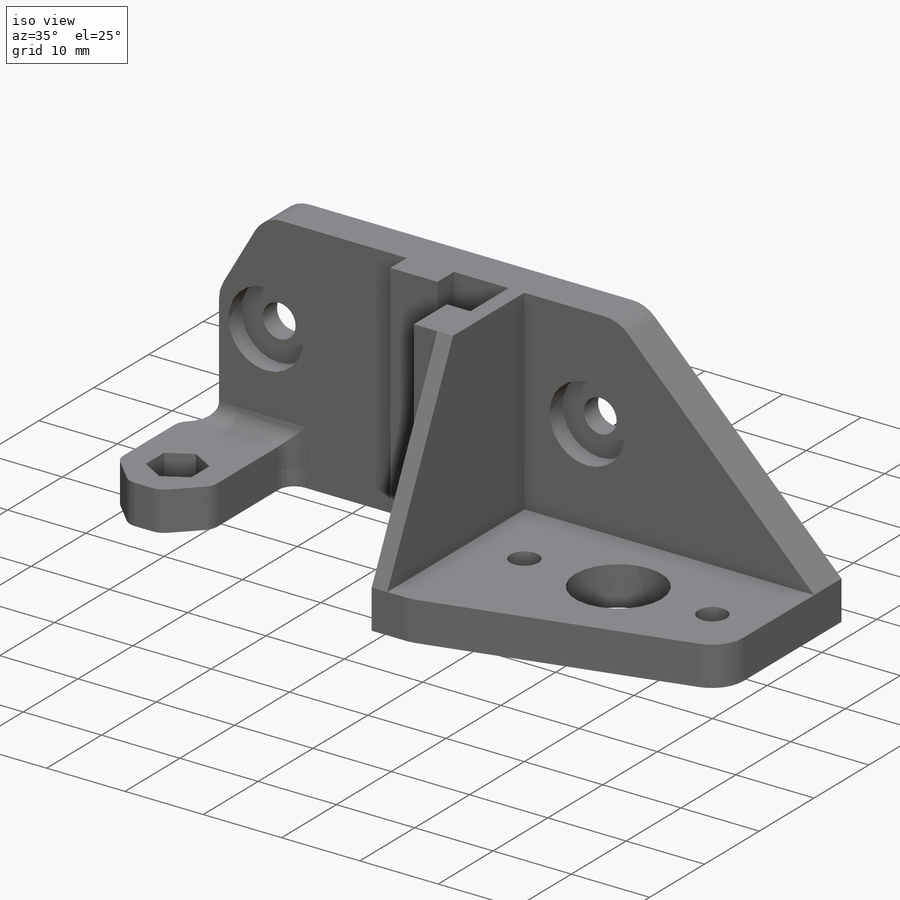
[diagram: iso view]
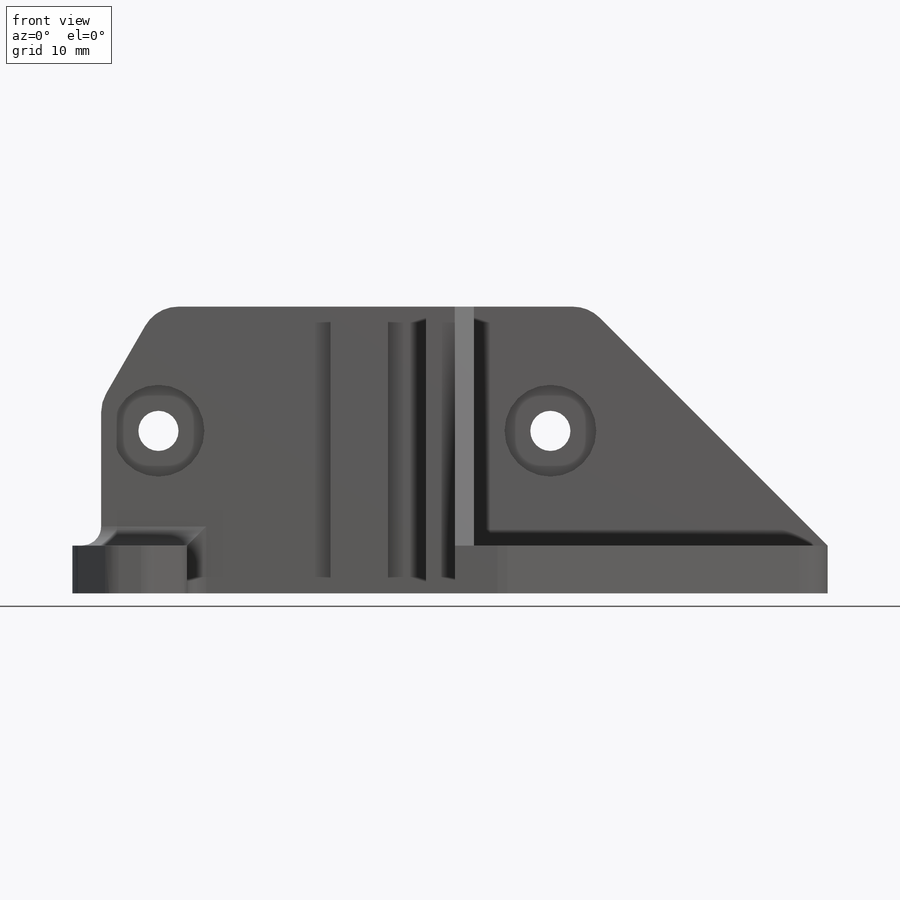
[diagram: front view]
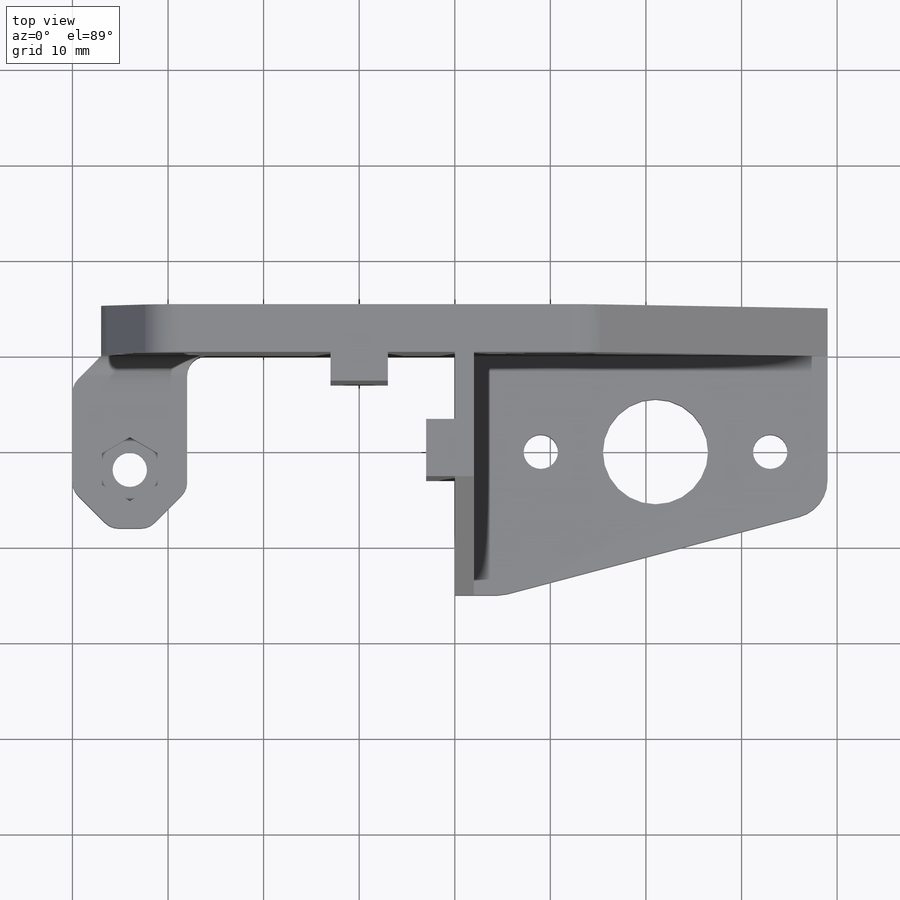
[diagram: top view]
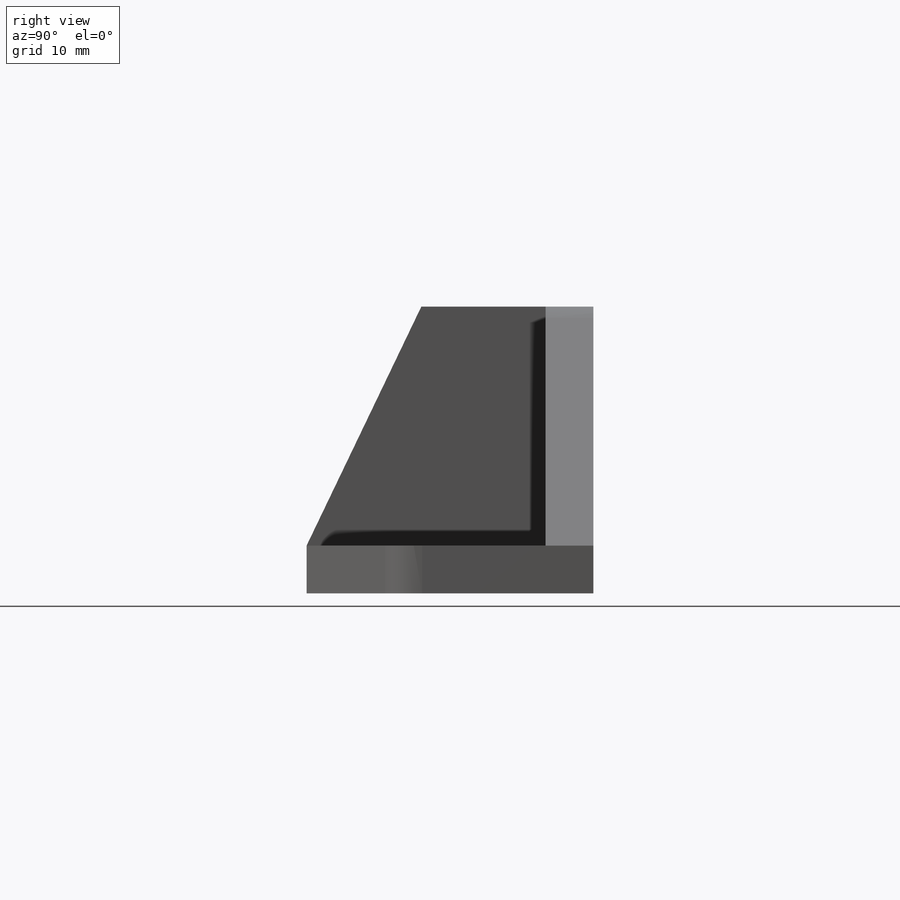
[diagram: right view]
SOLIDWORKS PART (.sldprt)
format: sldprt  version: not decoded by parser v0  size: 486,912 bytes
history: native  units: mm
features: sketch x18, cut_extrude x11, extrude x7, chamfer x4, fillet x3, move_body x2, material x1 + 1 further entry (+11 scaffold rows collapsed; 2 parser-record rows omitted)
feature tree (60):
  scaffold x11  (default folders/planes/origin — collapsed)
  material  "Material <not specified>"
  parser-record x2  (decoder bookkeeping rows leaked as tree rows — omitted from the tree; the rows remain in map.json)
  "X-End-Idler-V1_Mirrored Features1"
  sketch  "Sketch1"  dims[D1=30.0mm D2=30.0mm D3=15.0mm D4=15.0mm]
  extrude  "Boss-Extrude1"  Depth=30mm
  sketch  "Sketch2"  dims[D1=20.0mm D2=20.0mm D3=5.0mm D4=5.0mm]
  cut_extrude  "Cut-Extrude1"  [1 undecoded]
  sketch  "Sketch3"  dims[D1=5.0mm]
  extrude  "Boss-Extrude2"  Depth=40mm
  sketch  "Sketch4"  dims[D2=11.0mm D3=3.6mm D4=3.6mm D1=21.0mm D5=10.0mm D6=10.0mm D7=10.0mm D8=12.0mm D9=12.0mm]
  cut_extrude  "Cut-Extrude2"  [1 undecoded]
  sketch  "Sketch7"  dims[D1=6.0mm D2=6.0mm]
  cut_extrude  "Cut-Extrude3"  [1 undecoded]
  sketch  "Sketch5"  dims[D1=5.0mm]
  extrude  "Boss-Extrude4"  [1 undecoded]
  chamfer  "Chamfer1"  Distance=25mm Angle=45deg
  sketch  "Sketch8"  dims[D1=4.2mm D2=5.0mm D3=13.0mm]
  cut_extrude  "Cut-Extrude4"  [1 undecoded]
  sketch  "Sketch9"  dims[D1=5.0mm]
  extrude  "Boss-Extrude5"  Depth=12mm
  chamfer  "Chamfer2"  Distance=10mm Angle=30deg
  sketch  "Sketch10"  dims[D1=4.2mm D2=13.0mm D3=6.0mm]
  cut_extrude  "Cut-Extrude5"  [1 undecoded]
  move_body  "Body-Move/Copy1"
  sketch  "Sketch11"  dims[D1=3.0mm]
  cut_extrude  "Cut-Extrude6"  [1 undecoded]
  sketch  "Sketch12"
  cut_extrude  "Cut-Extrude7"  [1 undecoded]
  sketch  "Sketch13"  dims[D1=6.0mm D2=6.0mm D3=7.0mm D4=7.0mm D5=3.0mm D6=3.0mm]
  extrude  "Boss-Extrude6"  [1 undecoded]
  sketch  "Sketch14"  dims[D1=9.6mm D2=9.6mm]
  cut_extrude  "Cut-Extrude9"  Depth=2.4mm
  chamfer  "Chamfer3"  Distance=12mm
  fillet  "Fillet1"  Radius=4mm
  fillet  "Fillet2"  Radius=4mm
  move_body  "Body-Move/Copy2"
  sketch  "Sketch15"  dims[D1=5.0mm D2=24.0mm]
  extrude  "Boss-Extrude7"  Depth=18mm
  sketch  "Sketch17"
  extrude  "Boss-Extrude8"  Depth=3mm
  sketch  "Sketch18"  dims[D1=8.0mm D2=4.0mm]
  cut_extrude  "Cut-Extrude10"  [1 undecoded]
  chamfer  "Chamfer6"  Distance=4mm Angle=45deg
  fillet  "Fillet4"  Radius=2mm
  sketch  "Sketch16"  dims[D1=3.6mm D2=34.0mm]
  cut_extrude  "Cut-Extrude11"  [1 undecoded]
  sketch  "Sketch19"  dims[D1=5.8mm]
  cut_extrude  "Cut-Extrude12"  Depth=3mm
decode coverage: 30 of 45 modeling features carry decoded parameters; 1 rows unclassified (native names shown)
note: 11 parameter values undecoded
summary: no parameter record found for 11 features
note: suppression state not decoded; provenance and decode notes live in map.json
